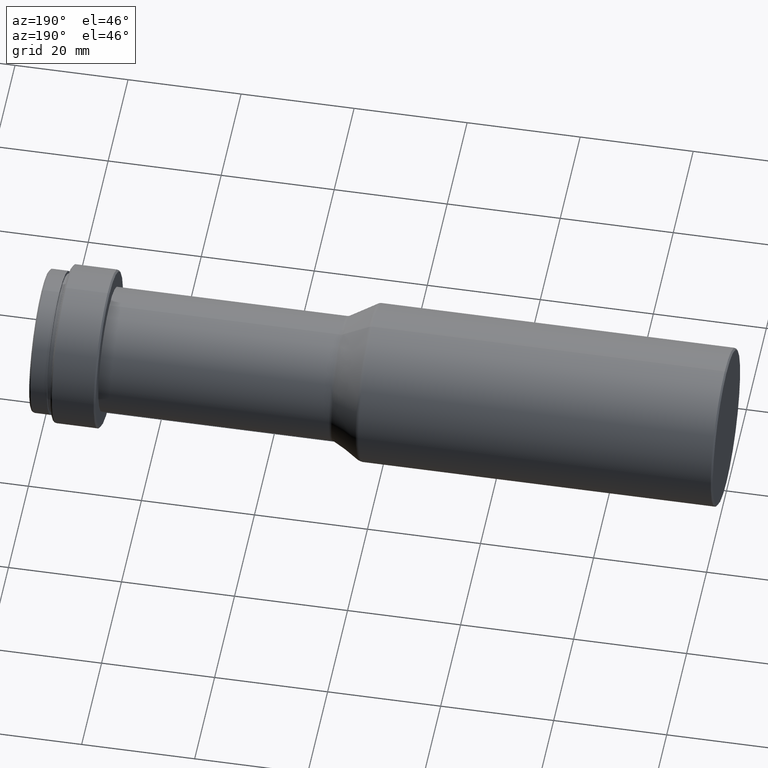
[diagram: clean part render]
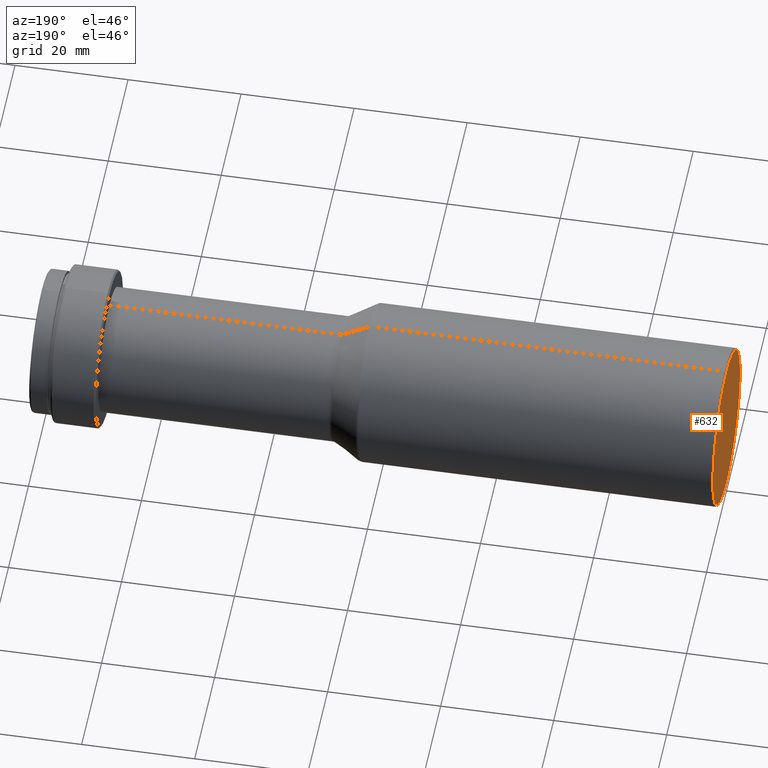
[diagram: same view with one face highlighted and labeled with its STEP entity id]
A machine part, auxiliary view. The second image highlights one B-rep face of the part: STEP entity #632.
In plain terms, the highlighted planar face has unit normal (1, 0, 0).
Its self-contained STEP definition (entity closure, byte-faithful):
#20 = DIRECTION ( 'NONE',  ( -1.000000000000000000, -0.0000000000000000000, -0.0000000000000000000 ) ) ;
#33 = AXIS2_PLACEMENT_3D ( 'NONE', #812, #177, #110 ) ;
#54 = CARTESIAN_POINT ( 'NONE',  ( 0.0000000000000000000, 1.696135816819084400E-015, 13.70000000000000300 ) ) ;
#71 = AXIS2_PLACEMENT_3D ( 'NONE', #709, #20, #476 ) ;
#98 = VERTEX_POINT ( 'NONE', #507 ) ;
#110 = DIRECTION ( 'NONE',  ( 0.0000000000000000000, 0.0000000000000000000, -1.000000000000000000 ) ) ;
#118 = PLANE ( 'NONE',  #33 ) ;
#137 = ORIENTED_EDGE ( 'NONE', *, *, #381, .T. ) ;
#177 = DIRECTION ( 'NONE',  ( 1.000000000000000000, 0.0000000000000000000, 0.0000000000000000000 ) ) ;
#206 = EDGE_LOOP ( 'NONE', ( #137, #272 ) ) ;
#271 = CIRCLE ( 'NONE', #711, 13.70000000000000300 ) ;
#272 = ORIENTED_EDGE ( 'NONE', *, *, #484, .T. ) ;
#345 = DIRECTION ( 'NONE',  ( 0.0000000000000000000, 0.0000000000000000000, 1.000000000000000000 ) ) ;
#377 = FACE_OUTER_BOUND ( 'NONE', #206, .T. ) ;
#381 = EDGE_CURVE ( 'NONE', #98, #626, #521, .T. ) ;
#476 = DIRECTION ( 'NONE',  ( 0.0000000000000000000, 0.0000000000000000000, 1.000000000000000000 ) ) ;
#484 = EDGE_CURVE ( 'NONE', #626, #98, #271, .T. ) ;
#507 = CARTESIAN_POINT ( 'NONE',  ( 0.0000000000000000000, 0.0000000000000000000, -13.70000000000000300 ) ) ;
#521 = CIRCLE ( 'NONE', #71, 13.70000000000000300 ) ;
#626 = VERTEX_POINT ( 'NONE', #54 ) ;
#632 = ADVANCED_FACE ( 'NONE', ( #377 ), #118, .F. ) ;
#667 = CARTESIAN_POINT ( 'NONE',  ( 0.0000000000000000000, 0.0000000000000000000, 0.0000000000000000000 ) ) ;
#669 = DIRECTION ( 'NONE',  ( -1.000000000000000000, -0.0000000000000000000, -0.0000000000000000000 ) ) ;
#709 = CARTESIAN_POINT ( 'NONE',  ( 0.0000000000000000000, 0.0000000000000000000, 0.0000000000000000000 ) ) ;
#711 = AXIS2_PLACEMENT_3D ( 'NONE', #667, #669, #345 ) ;
#812 = CARTESIAN_POINT ( 'NONE',  ( 0.0000000000000000000, 0.0000000000000000000, 0.0000000000000000000 ) ) ;